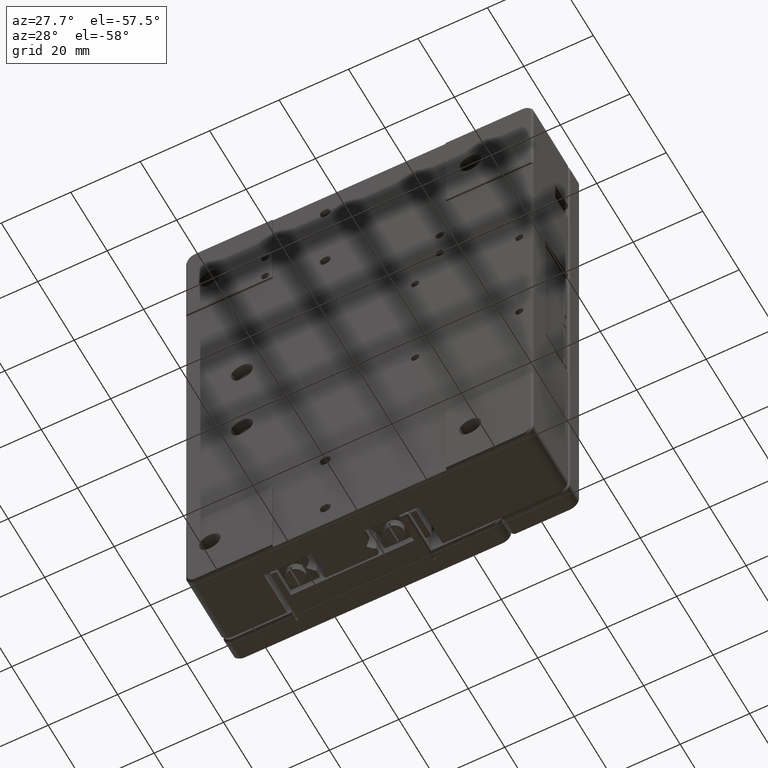
[diagram: clean part render]
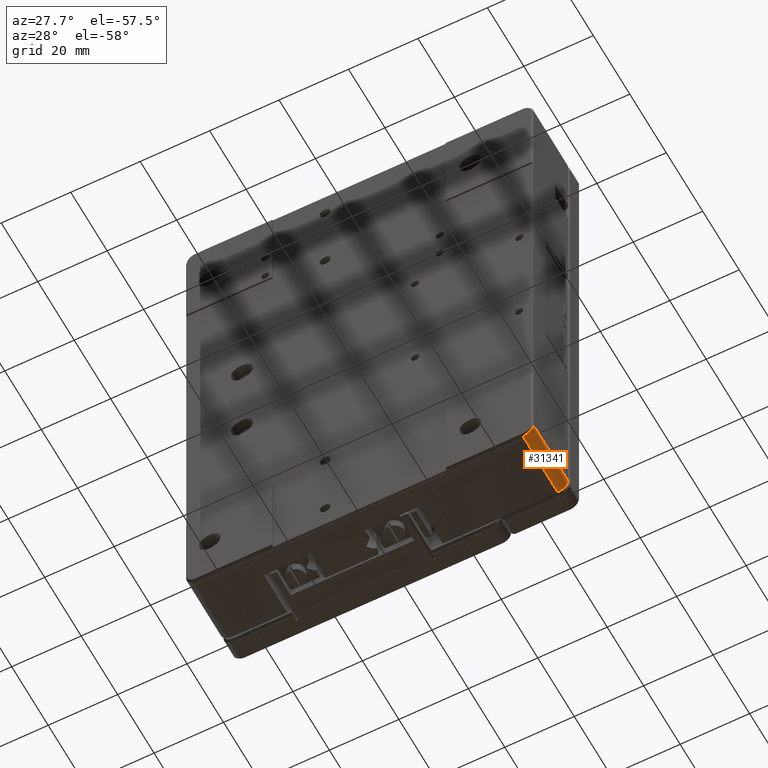
[diagram: same view with one face highlighted and labeled with its STEP entity id]
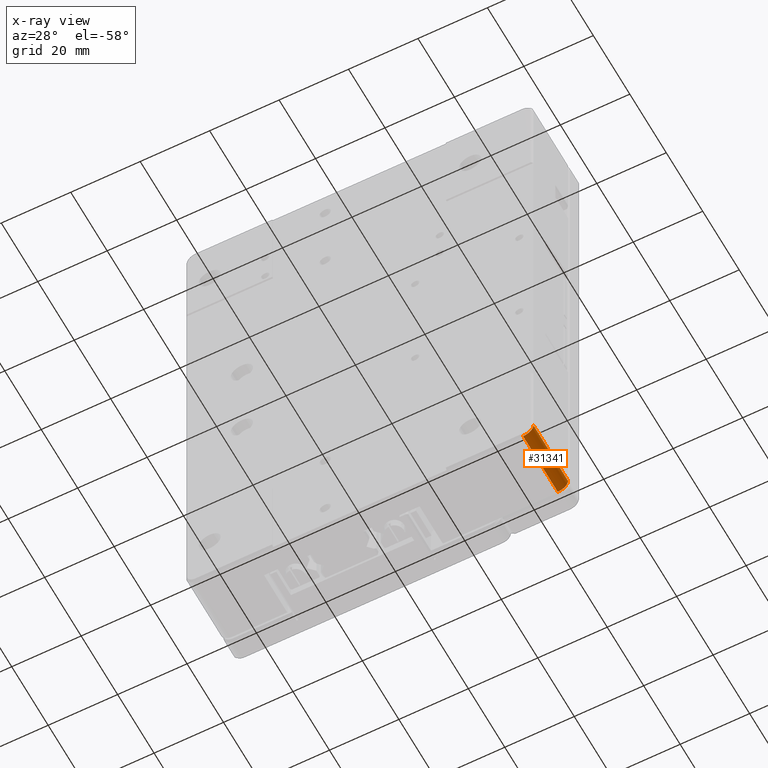
[diagram: x-ray of the same camera — body ghosted, the highlighted face saturated]
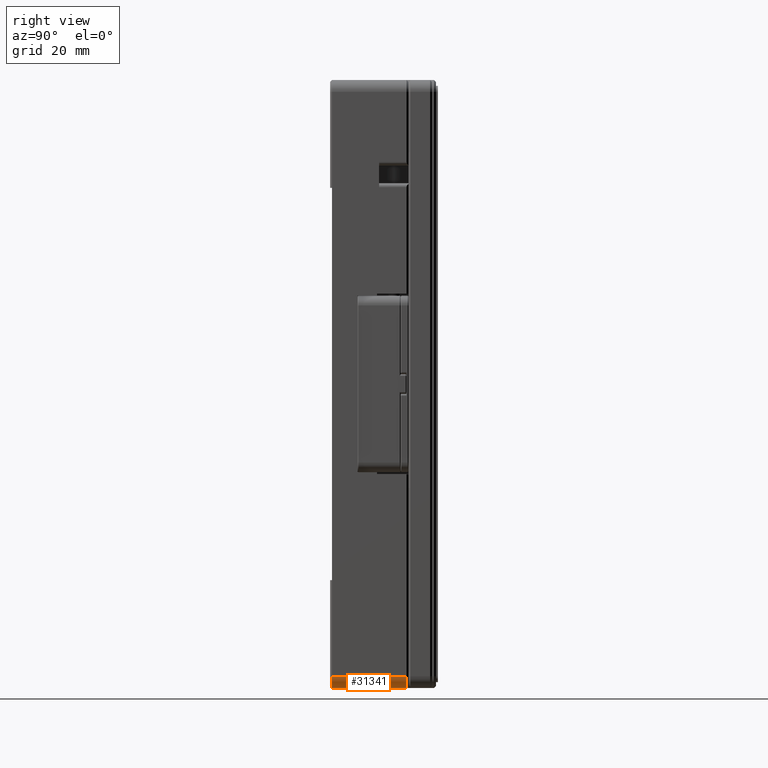
[diagram: same view with one face highlighted and labeled with its STEP entity id]
A machine part, auxiliary view. The second image highlights one B-rep face of the part: STEP entity #31341.
The next image is the same camera in x-ray: the body ghosted, the highlighted face saturated — about 0% of this face is hidden behind the body in this view.
A second angle (right view) of the same face is appended — the face is thin or edge-on in the first view.
In plain terms, the highlighted cylindrical surface (edge-blend (fillet) strip) has radius 3 mm, axis along (0, -1, 0).
Its self-contained STEP definition (entity closure, byte-faithful):
#341 = EDGE_CURVE ( 'NONE', #2062, #29278, #45328, .T. ) ;
#2062 = VERTEX_POINT ( 'NONE', #41895 ) ;
#2659 = CARTESIAN_POINT ( 'NONE',  ( 49.39900052719453782, -19.50000259220363930, -76.34364015992473185 ) ) ;
#2704 = ORIENTED_EDGE ( 'NONE', *, *, #341, .F. ) ;
#3329 = CARTESIAN_POINT ( 'NONE',  ( 47.39269908169872281, -19.50000259220363574, -77.50000000000000000 ) ) ;
#3460 = CARTESIAN_POINT ( 'NONE',  ( 49.39900052719454493, -0.4999974077982624610, -76.34364015992476027 ) ) ;
#3678 = CARTESIAN_POINT ( 'NONE',  ( 49.62135916506277056, -0.4999974077982624610, -76.01085694111270641 ) ) ;
#6224 = CARTESIAN_POINT ( 'NONE',  ( 47.39269908169872991, -0.4999974077982624610, -77.50000000000000000 ) ) ;
#6669 = CARTESIAN_POINT ( 'NONE',  ( 47.00000000000000000, -0.5000381071895999563, -77.50000000000000000 ) ) ;
#7188 = DIRECTION ( 'NONE',  ( 0.000000000000000000, -1.000000000000000000, 0.000000000000000000 ) ) ;
#7953 = DIRECTION ( 'NONE',  ( 0.000000000000000000, 0.000000000000000000, -1.000000000000000000 ) ) ;
#9076 = VERTEX_POINT ( 'NONE', #22873 ) ;
#10143 = CARTESIAN_POINT ( 'NONE',  ( 49.99999999999999289, -0.4999974077982624610, -74.89269908169869439 ) ) ;
#10467 = CARTESIAN_POINT ( 'NONE',  ( 50.00000000000000000, -19.49996189280999914, -74.50000000000000000 ) ) ;
#11195 = DIRECTION ( 'NONE',  ( 0.000000000000000000, -1.000000000000000000, 0.000000000000000000 ) ) ;
#12054 = EDGE_CURVE ( 'NONE', #29278, #9076, #22424, .T. ) ;
#12230 = VECTOR ( 'NONE', #21957, 1000.000000000000000 ) ;
#13684 = CARTESIAN_POINT ( 'NONE',  ( 48.51085694111269930, -19.50000259220363219, -77.12135916506275635 ) ) ;
#13808 = CARTESIAN_POINT ( 'NONE',  ( 47.78524365307784905, -0.4999974077982624610, -77.42191803000493167 ) ) ;
#14114 = CARTESIAN_POINT ( 'NONE',  ( 50.00000000000000000, -19.49996189280999914, -74.50000000000000000 ) ) ;
#17472 = CARTESIAN_POINT ( 'NONE',  ( 48.84364015992473895, -0.4999974077982624610, -76.89900052719453072 ) ) ;
#18176 = ORIENTED_EDGE ( 'NONE', *, *, #12054, .F. ) ;
#18304 = CARTESIAN_POINT ( 'NONE',  ( 47.00000000000000000, 26.07200000000000273, -74.50000000000000000 ) ) ;
#20576 = CARTESIAN_POINT ( 'NONE',  ( 49.92191803000496009, -19.50000259220363930, -75.28524365307785615 ) ) ;
#20951 = CARTESIAN_POINT ( 'NONE',  ( 50.00000000000000000, -0.5000381071895999563, -74.50000000000000000 ) ) ;
#21957 = DIRECTION ( 'NONE',  ( 0.000000000000000000, -1.000000000000000000, 0.000000000000000000 ) ) ;
#22338 = CARTESIAN_POINT ( 'NONE',  ( 47.00000000000000000, -0.5000381071895999563, -77.50000000000000000 ) ) ;
#22424 = LINE ( 'NONE', #25656, #12230 ) ;
#22609 = EDGE_CURVE ( 'NONE', #9076, #36798, #39142, .T. ) ;
#22873 = CARTESIAN_POINT ( 'NONE',  ( 47.00000000000000000, -19.49996189280999914, -77.50000000000000000 ) ) ;
#24172 = CARTESIAN_POINT ( 'NONE',  ( 49.92191803000495298, -0.4999974077982624610, -75.28524365307784194 ) ) ;
#25656 = CARTESIAN_POINT ( 'NONE',  ( 47.00000002023999457, -0.4999996707732000112, -77.50000031881999973 ) ) ;
#27513 = CARTESIAN_POINT ( 'NONE',  ( 47.00000000000000000, -19.49996189280999914, -77.50000000000000000 ) ) ;
#27736 = CARTESIAN_POINT ( 'NONE',  ( 48.84364015992474606, -19.50000259220363930, -76.89900052719454493 ) ) ;
#27926 = LINE ( 'NONE', #35504, #35516 ) ;
#29278 = VERTEX_POINT ( 'NONE', #22338 ) ;
#30964 = CARTESIAN_POINT ( 'NONE',  ( 49.62135916506277056, -19.50000259220363930, -76.01085694111272062 ) ) ;
#31341 = ADVANCED_FACE ( 'NONE', ( #43610 ), #42927, .T. ) ;
#31530 = CARTESIAN_POINT ( 'NONE',  ( 48.51085694111269930, -0.4999974077982624610, -77.12135916506277056 ) ) ;
#33225 = AXIS2_PLACEMENT_3D ( 'NONE', #18304, #11195, #7953 ) ;
#35016 = EDGE_CURVE ( 'NONE', #2062, #36798, #27926, .T. ) ;
#35504 = CARTESIAN_POINT ( 'NONE',  ( 50.00000032402000016, -0.4999996759718000061, -74.50000000017999469 ) ) ;
#35516 = VECTOR ( 'NONE', #7188, 1000.000000000000000 ) ;
#35876 = EDGE_LOOP ( 'NONE', ( #41358, #39104, #18176, #2704 ) ) ;
#36798 = VERTEX_POINT ( 'NONE', #14114 ) ;
#37613 = CARTESIAN_POINT ( 'NONE',  ( 50.00000000000000711, -19.50000259220363930, -74.89269908169872281 ) ) ;
#39104 = ORIENTED_EDGE ( 'NONE', *, *, #22609, .F. ) ;
#39142 = B_SPLINE_CURVE_WITH_KNOTS ( 'NONE', 3,
 ( #27513, #3329, #41735, #13684, #27736, #2659, #30964, #20576, #37613, #10467 ),
 .UNSPECIFIED., .F., .F.,
 ( 4, 2, 2, 2, 4 ),
 ( 0.000000000000000000, 0.2500000000000000000, 0.5000000000000000000, 0.7500000000000000000, 1.000000000000000000 ),
 .UNSPECIFIED. ) ;
#41358 = ORIENTED_EDGE ( 'NONE', *, *, #35016, .T. ) ;
#41735 = CARTESIAN_POINT ( 'NONE',  ( 47.78524365307784194, -19.50000259220363219, -77.42191803000494588 ) ) ;
#41895 = CARTESIAN_POINT ( 'NONE',  ( 50.00000000000000000, -0.5000381071895999563, -74.50000000000000000 ) ) ;
#42927 = CYLINDRICAL_SURFACE ( 'NONE', #33225, 3.000000000000002665 ) ;
#43610 = FACE_OUTER_BOUND ( 'NONE', #35876, .T. ) ;
#45328 = B_SPLINE_CURVE_WITH_KNOTS ( 'NONE', 3,
 ( #20951, #10143, #24172, #3678, #3460, #17472, #31530, #13808, #6224, #6669 ),
 .UNSPECIFIED., .F., .F.,
 ( 4, 2, 2, 2, 4 ),
 ( 0.000000000000000000, 0.2500000000000000000, 0.5000000000000000000, 0.7500000000000000000, 1.000000000000000000 ),
 .UNSPECIFIED. ) ;